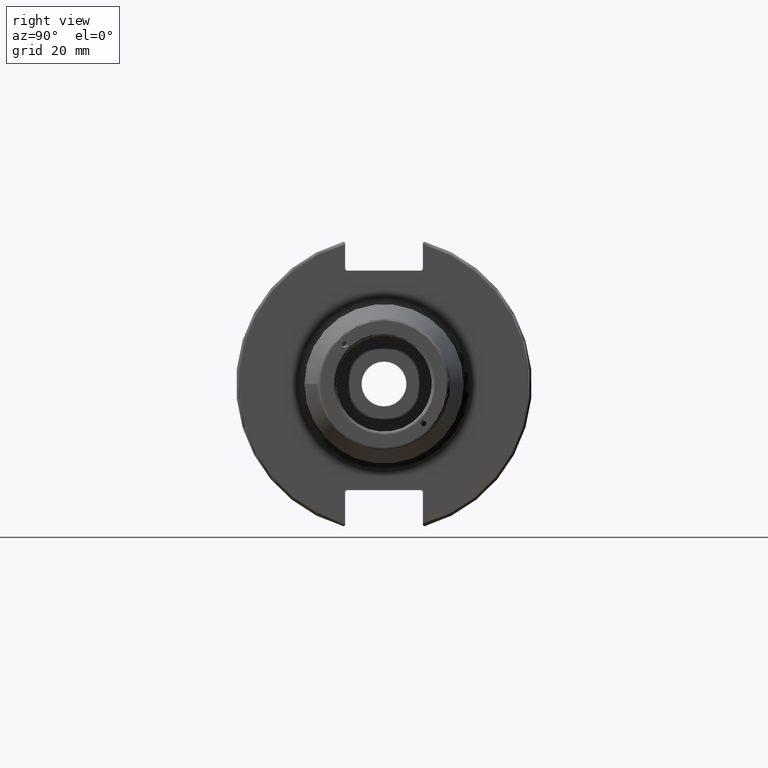
[diagram: clean part render]
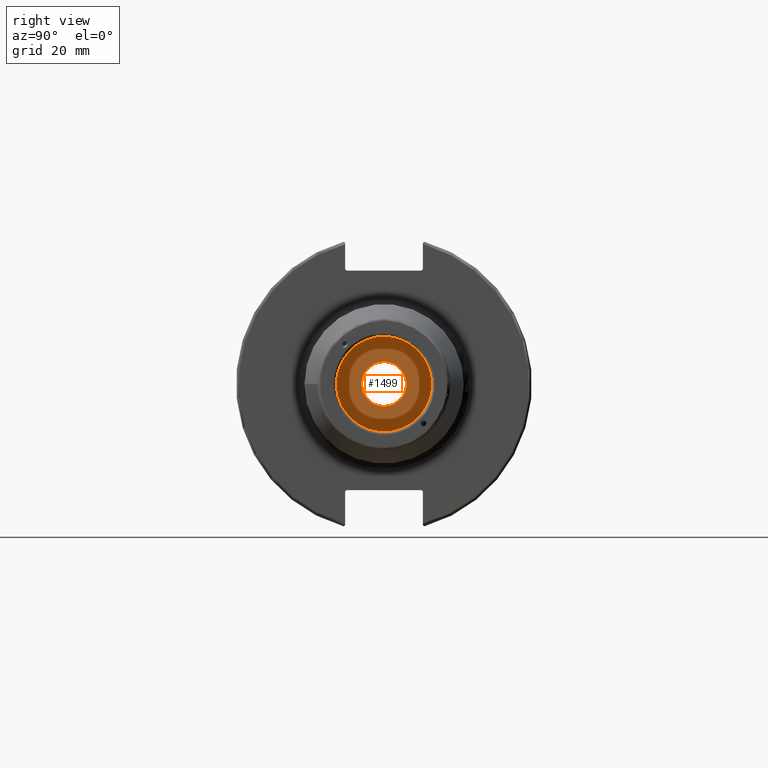
[diagram: same view with one face highlighted and labeled with its STEP entity id]
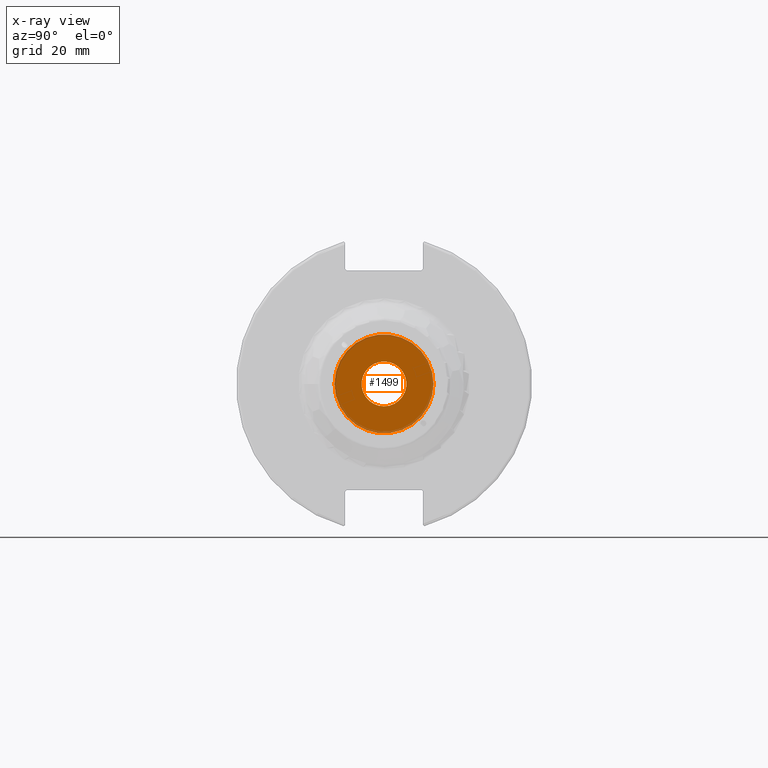
[diagram: x-ray of the same camera — body ghosted, the highlighted face saturated]
A machine part, right view. The second image highlights one B-rep face of the part: STEP entity #1499.
The next image is the same camera in x-ray: the body ghosted, the highlighted face saturated — about 9% of this face is hidden behind the body in this view.
In plain terms, the highlighted planar face has unit normal (1, 0, 0).
Its self-contained STEP definition (entity closure, byte-faithful):
#305=FACE_BOUND('',#473,.T.);
#327=PLANE('',#1637);
#378=FACE_OUTER_BOUND('',#472,.T.);
#472=EDGE_LOOP('',(#1101));
#473=EDGE_LOOP('',(#1102));
#578=CIRCLE('',#1627,7.458734);
#584=CIRCLE('',#1636,16.475);
#665=VERTEX_POINT('',#2274);
#675=VERTEX_POINT('',#2368);
#827=EDGE_CURVE('',#665,#665,#578,.T.);
#841=EDGE_CURVE('',#675,#675,#584,.T.);
#1101=ORIENTED_EDGE('',*,*,#841,.T.);
#1102=ORIENTED_EDGE('',*,*,#827,.T.);
#1499=ADVANCED_FACE('',(#378,#305),#327,.T.);
#1627=AXIS2_PLACEMENT_3D('',#2275,#1847,#1848);
#1636=AXIS2_PLACEMENT_3D('',#2370,#1869,#1870);
#1637=AXIS2_PLACEMENT_3D('',#2371,#1871,#1872);
#1847=DIRECTION('center_axis',(-1.,0.,0.));
#1848=DIRECTION('ref_axis',(0.,0.,-1.));
#1869=DIRECTION('center_axis',(1.,0.,0.));
#1870=DIRECTION('ref_axis',(0.,0.,-1.));
#1871=DIRECTION('center_axis',(1.,0.,0.));
#1872=DIRECTION('ref_axis',(0.,0.,-1.));
#2274=CARTESIAN_POINT('',(40.,-9.13431471879154E-16,7.458734));
#2275=CARTESIAN_POINT('Origin',(40.,0.,0.));
#2368=CARTESIAN_POINT('',(40.,-16.475,-2.01760560159526E-15));
#2370=CARTESIAN_POINT('Origin',(40.,0.,0.));
#2371=CARTESIAN_POINT('Origin',(40.,0.,0.));